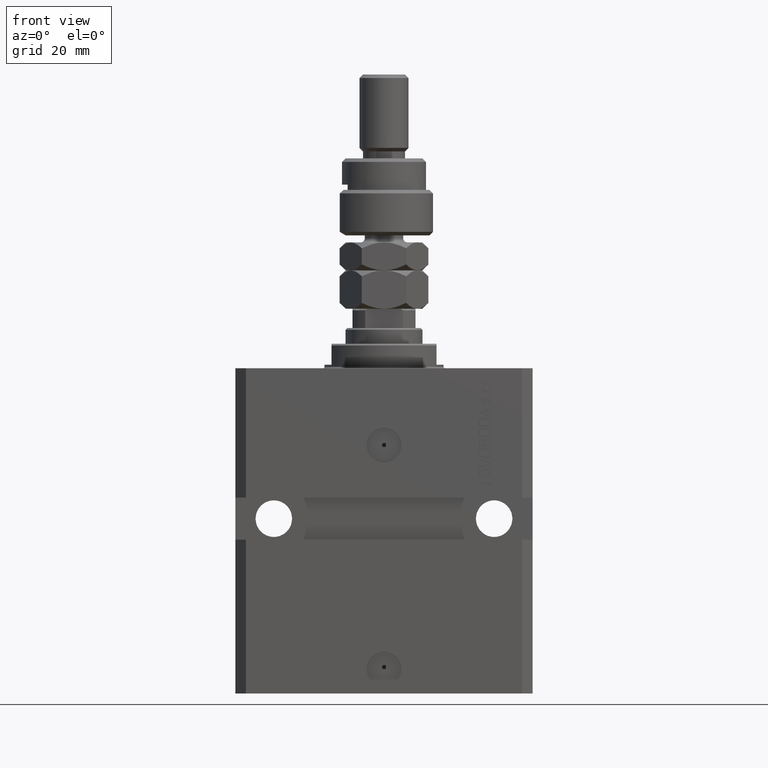
[diagram: clean part render]
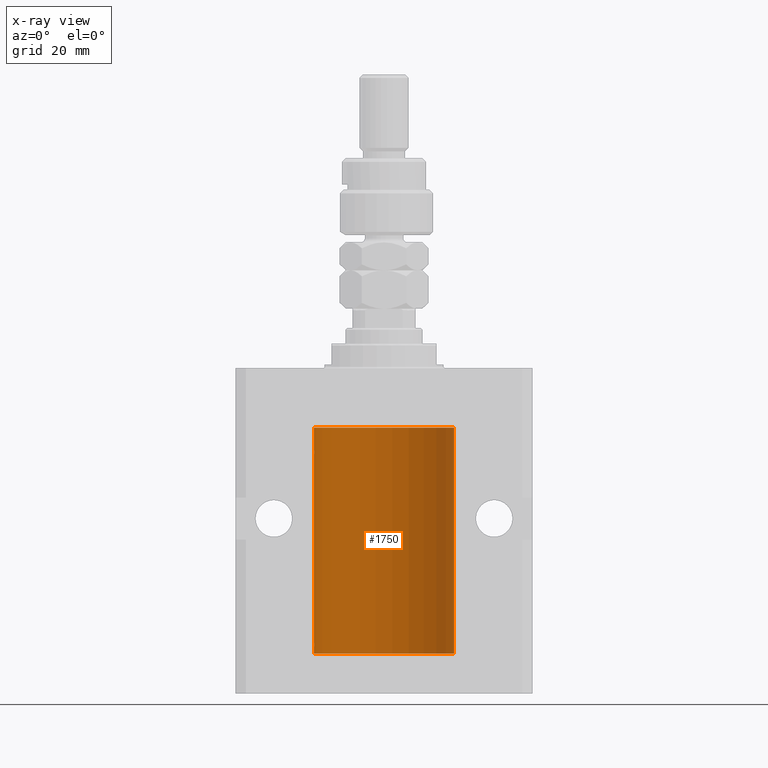
[diagram: x-ray — body ghosted, one internal face saturated and labeled with its STEP entity id]
A machine part, front view, then the same camera in x-ray: the body is ghosted and one INTERNAL B-rep face — a face not visible from any outside direction — is saturated and labeled: STEP entity #1750.
In plain terms, the highlighted cylindrical surface (partial cylindrical patch) has radius 20 mm, axis along (0, 0, 1).
Its self-contained STEP definition (entity closure, byte-faithful):
#1193 = CARTESIAN_POINT ( 'NONE',  ( -20.00000000000000000, 0.1631688615953320320, -24.62499999999985434 ) ) ;
#1482 = ORIENTED_EDGE ( 'NONE', *, *, #45892, .F. ) ;
#1750 = ADVANCED_FACE ( 'NONE', ( #9431 ), #10185, .F. ) ;
#2697 = DIRECTION ( 'NONE',  ( -0.000000000000000000, -0.000000000000000000, 1.000000000000000000 ) ) ;
#3043 = CARTESIAN_POINT ( 'NONE',  ( -20.00000000000010303, 3.580159286679549072E-13, -79.62500000000332534 ) ) ;
#3299 = EDGE_CURVE ( 'NONE', #27395, #19256, #6904, .T. ) ;
#5548 = DIRECTION ( 'NONE',  ( 0.000000000000000000, 0.000000000000000000, 1.000000000000000000 ) ) ;
#6164 = VERTEX_POINT ( 'NONE', #28955 ) ;
#6904 = B_SPLINE_CURVE_WITH_KNOTS ( 'NONE', 3,
 ( #42447, #50084, #7524, #7267, #23061, #14905, #37582, #30691, #30439, #14388, #18213, #22811 ),
 .UNSPECIFIED., .F., .F.,
 ( 4, 2, 2, 2, 2, 4 ),
 ( 1.522880481566060999E-18, 0.0002442693137305179392, 0.0004885386274610343605, 0.0009770772549220966934, 0.001465615882383158918, 0.001954154509844221576 ),
 .UNSPECIFIED. ) ;
#7267 = CARTESIAN_POINT ( 'NONE',  ( -19.99766197842594551, 0.3150331617867603295, -78.45402070102504410 ) ) ;
#7524 = CARTESIAN_POINT ( 'NONE',  ( -19.99947377218718003, 0.1636439183262797525, -78.39126364004653169 ) ) ;
#8091 = CARTESIAN_POINT ( 'NONE',  ( -19.99023018003212471, 0.6250578794725500931, -24.16284809704970371 ) ) ;
#8371 = ORIENTED_EDGE ( 'NONE', *, *, #28485, .T. ) ;
#8561 = EDGE_CURVE ( 'NONE', #19954, #32751, #28966, .T. ) ;
#9044 = EDGE_LOOP ( 'NONE', ( #26792, #1482, #40733, #8371, #47786, #25699, #44494, #39396 ) ) ;
#9431 = FACE_OUTER_BOUND ( 'NONE', #9044, .T. ) ;
#10185 = CYLINDRICAL_SURFACE ( 'NONE', #36489, 20.00000000000000000 ) ;
#10764 = DIRECTION ( 'NONE',  ( -0.000000000000000000, -0.000000000000000000, 1.000000000000000000 ) ) ;
#10833 = CARTESIAN_POINT ( 'NONE',  ( -20.00000000000000000, -2.867584836844214272E-15, -23.37500000000000000 ) ) ;
#11020 = CARTESIAN_POINT ( 'NONE',  ( -20.00000000000000000, 2.449293598294706513E-15, -81.59999999999999432 ) ) ;
#11667 = CARTESIAN_POINT ( 'NONE',  ( -19.99999999999999645, 0.08259581631026780002, -23.37500000000000000 ) ) ;
#13413 = CARTESIAN_POINT ( 'NONE',  ( 0.000000000000000000, 0.000000000000000000, -17.00000000000000000 ) ) ;
#13466 = DIRECTION ( 'NONE',  ( -0.000000000000000000, -0.000000000000000000, 1.000000000000000000 ) ) ;
#13660 = DIRECTION ( 'NONE',  ( 0.000000000000000000, 0.000000000000000000, 1.000000000000000000 ) ) ;
#14388 = CARTESIAN_POINT ( 'NONE',  ( -19.99769349528941831, 0.3253804398728615266, -79.55855820727680339 ) ) ;
#14463 = CARTESIAN_POINT ( 'NONE',  ( -20.00000000000000000, -2.867584836844214272E-15, -23.37500000000000000 ) ) ;
#14905 = CARTESIAN_POINT ( 'NONE',  ( -19.99256581701871838, 0.5573276956901996870, -78.67348565770949165 ) ) ;
#15063 = CARTESIAN_POINT ( 'NONE',  ( 20.00000000000000000, 0.000000000000000000, -17.00000000000000000 ) ) ;
#15064 = VERTEX_POINT ( 'NONE', #45964 ) ;
#16225 = CARTESIAN_POINT ( 'NONE',  ( -19.99253506710754991, 0.5587120480776751608, -24.32511620830248589 ) ) ;
#17065 = CARTESIAN_POINT ( 'NONE',  ( 0.000000000000000000, 0.000000000000000000, -81.59999999999999432 ) ) ;
#17411 = CARTESIAN_POINT ( 'NONE',  ( 20.00000000000000000, 0.000000000000000000, -81.59999999999999432 ) ) ;
#17565 = CIRCLE ( 'NONE', #28162, 20.00000000000000000 ) ;
#18213 = CARTESIAN_POINT ( 'NONE',  ( -20.00000000000000355, 0.1631688615953343080, -79.62499999999984368 ) ) ;
#18280 = CARTESIAN_POINT ( 'NONE',  ( -20.00000000000000000, 2.449293598294706513E-15, -81.59999999999999432 ) ) ;
#19256 = VERTEX_POINT ( 'NONE', #3043 ) ;
#19548 = CARTESIAN_POINT ( 'NONE',  ( -19.99769349528941120, 0.3253804398728645242, -24.55855820727680339 ) ) ;
#19954 = VERTEX_POINT ( 'NONE', #10833 ) ;
#21314 = CARTESIAN_POINT ( 'NONE',  ( -20.00000000000010303, 3.580159278407742946E-13, -24.62500000000332889 ) ) ;
#21478 = CARTESIAN_POINT ( 'NONE',  ( -20.00000000000000000, -1.124177324826063808E-14, -78.37500000000000000 ) ) ;
#21729 = VECTOR ( 'NONE', #2697, 1000.000000000000000 ) ;
#21799 = CARTESIAN_POINT ( 'NONE',  ( -20.00000000000000000, 2.449293598294706513E-15, -81.59999999999999432 ) ) ;
#22052 = EDGE_CURVE ( 'NONE', #15064, #23469, #49266, .T. ) ;
#22811 = CARTESIAN_POINT ( 'NONE',  ( -20.00000000000010303, 3.580159286679549072E-13, -79.62500000000332534 ) ) ;
#23061 = CARTESIAN_POINT ( 'NONE',  ( -19.99638934703457238, 0.3843678041337651452, -78.50046362978099523 ) ) ;
#23469 = VERTEX_POINT ( 'NONE', #15063 ) ;
#24129 = CARTESIAN_POINT ( 'NONE',  ( -19.99638934703457593, 0.3843678041337688644, -23.50046362978100944 ) ) ;
#24374 = CIRCLE ( 'NONE', #48810, 20.00000000000000000 ) ;
#25211 = DIRECTION ( 'NONE',  ( -0.000000000000000000, -0.000000000000000000, 1.000000000000000000 ) ) ;
#25699 = ORIENTED_EDGE ( 'NONE', *, *, #8561, .T. ) ;
#26792 = ORIENTED_EDGE ( 'NONE', *, *, #48945, .F. ) ;
#27133 = EDGE_CURVE ( 'NONE', #27395, #32751, #33328, .T. ) ;
#27189 = CARTESIAN_POINT ( 'NONE',  ( -19.99947377218718714, 0.1636439183262877461, -23.39126364004656011 ) ) ;
#27395 = VERTEX_POINT ( 'NONE', #21478 ) ;
#28162 = AXIS2_PLACEMENT_3D ( 'NONE', #40461, #5548, #48851 ) ;
#28485 = EDGE_CURVE ( 'NONE', #23469, #45385, #24374, .T. ) ;
#28955 = CARTESIAN_POINT ( 'NONE',  ( -20.00000000000000000, 2.449293598294706513E-15, -81.59999999999999432 ) ) ;
#28966 = B_SPLINE_CURVE_WITH_KNOTS ( 'NONE', 3,
 ( #14463, #11667, #27189, #30001, #24129, #43770, #36104, #8091, #16225, #19548, #1193, #43013 ),
 .UNSPECIFIED., .F., .F.,
 ( 4, 2, 2, 2, 2, 4 ),
 ( 5.848927291235706941E-19, 0.0002442693137305304075, 0.0004885386274610601645, 0.0009770772549221123059, 0.001465615882383164339, 0.001954154509844215938 ),
 .UNSPECIFIED. ) ;
#29869 = DIRECTION ( 'NONE',  ( -0.000000000000000000, -0.000000000000000000, 1.000000000000000000 ) ) ;
#30001 = CARTESIAN_POINT ( 'NONE',  ( -19.99766197842594906, 0.3150331617867667688, -23.45402070102505476 ) ) ;
#30367 = LINE ( 'NONE', #11020, #45155 ) ;
#30439 = CARTESIAN_POINT ( 'NONE',  ( -19.99253506710754991, 0.5587120480776742726, -79.32511620830248944 ) ) ;
#30691 = CARTESIAN_POINT ( 'NONE',  ( -19.99023018003212471, 0.6250578794725522025, -79.16284809704971792 ) ) ;
#32751 = VERTEX_POINT ( 'NONE', #21314 ) ;
#33328 = LINE ( 'NONE', #18280, #47953 ) ;
#33366 = DIRECTION ( 'NONE',  ( 1.000000000000000000, 0.000000000000000000, 0.000000000000000000 ) ) ;
#36104 = CARTESIAN_POINT ( 'NONE',  ( -19.99023380173166231, 0.6249420416828462832, -23.83670793056396064 ) ) ;
#36489 = AXIS2_PLACEMENT_3D ( 'NONE', #17065, #25211, #33366 ) ;
#36664 = CARTESIAN_POINT ( 'NONE',  ( -20.00000000000000000, 2.449293598294706513E-15, -17.00000000000000000 ) ) ;
#37582 = CARTESIAN_POINT ( 'NONE',  ( -19.99023380173166231, 0.6249420416828449509, -78.83670793056396064 ) ) ;
#39396 = ORIENTED_EDGE ( 'NONE', *, *, #3299, .T. ) ;
#40461 = CARTESIAN_POINT ( 'NONE',  ( 0.000000000000000000, 0.000000000000000000, -81.59999999999999432 ) ) ;
#40733 = ORIENTED_EDGE ( 'NONE', *, *, #22052, .T. ) ;
#40931 = DIRECTION ( 'NONE',  ( 1.000000000000000000, 0.000000000000000000, 0.000000000000000000 ) ) ;
#40942 = LINE ( 'NONE', #21799, #21729 ) ;
#41055 = VECTOR ( 'NONE', #29869, 1000.000000000000000 ) ;
#42447 = CARTESIAN_POINT ( 'NONE',  ( -20.00000000000000000, -1.124177324826063808E-14, -78.37500000000000000 ) ) ;
#43013 = CARTESIAN_POINT ( 'NONE',  ( -20.00000000000010303, 3.580159278407742946E-13, -24.62500000000332889 ) ) ;
#43770 = CARTESIAN_POINT ( 'NONE',  ( -19.99256581701871482, 0.5573276956902001311, -23.67348565770948809 ) ) ;
#44494 = ORIENTED_EDGE ( 'NONE', *, *, #27133, .F. ) ;
#45155 = VECTOR ( 'NONE', #10764, 1000.000000000000000 ) ;
#45385 = VERTEX_POINT ( 'NONE', #36664 ) ;
#45892 = EDGE_CURVE ( 'NONE', #15064, #6164, #17565, .T. ) ;
#45964 = CARTESIAN_POINT ( 'NONE',  ( 20.00000000000000000, 0.000000000000000000, -81.59999999999999432 ) ) ;
#46706 = EDGE_CURVE ( 'NONE', #19954, #45385, #30367, .T. ) ;
#47786 = ORIENTED_EDGE ( 'NONE', *, *, #46706, .F. ) ;
#47953 = VECTOR ( 'NONE', #13466, 1000.000000000000000 ) ;
#48810 = AXIS2_PLACEMENT_3D ( 'NONE', #13413, #13660, #40931 ) ;
#48851 = DIRECTION ( 'NONE',  ( 1.000000000000000000, 0.000000000000000000, 0.000000000000000000 ) ) ;
#48945 = EDGE_CURVE ( 'NONE', #6164, #19256, #40942, .T. ) ;
#49266 = LINE ( 'NONE', #17411, #41055 ) ;
#50084 = CARTESIAN_POINT ( 'NONE',  ( -19.99999999999999289, 0.08259581631026131909, -78.37499999999998579 ) ) ;